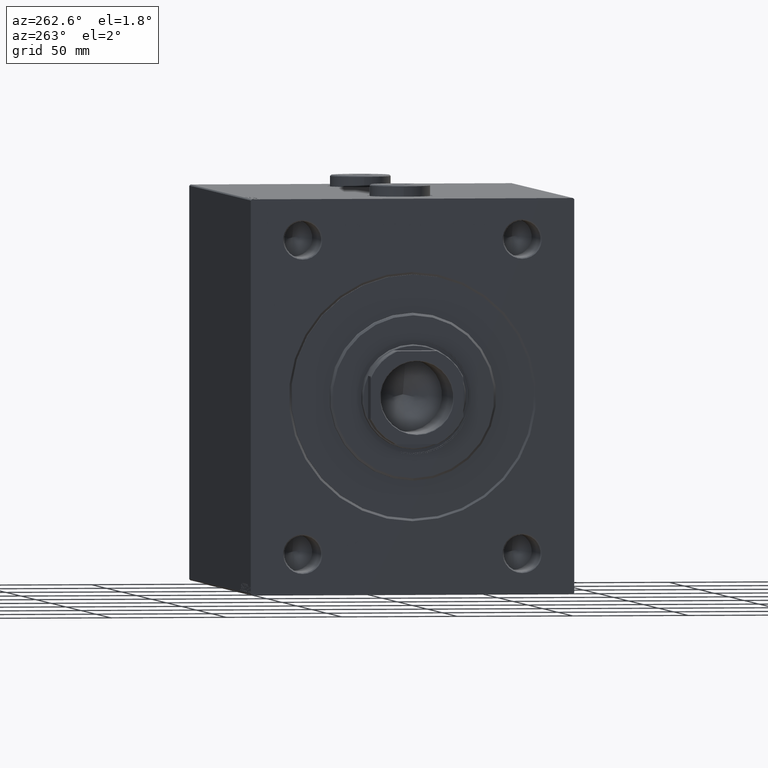
[diagram: clean part render]
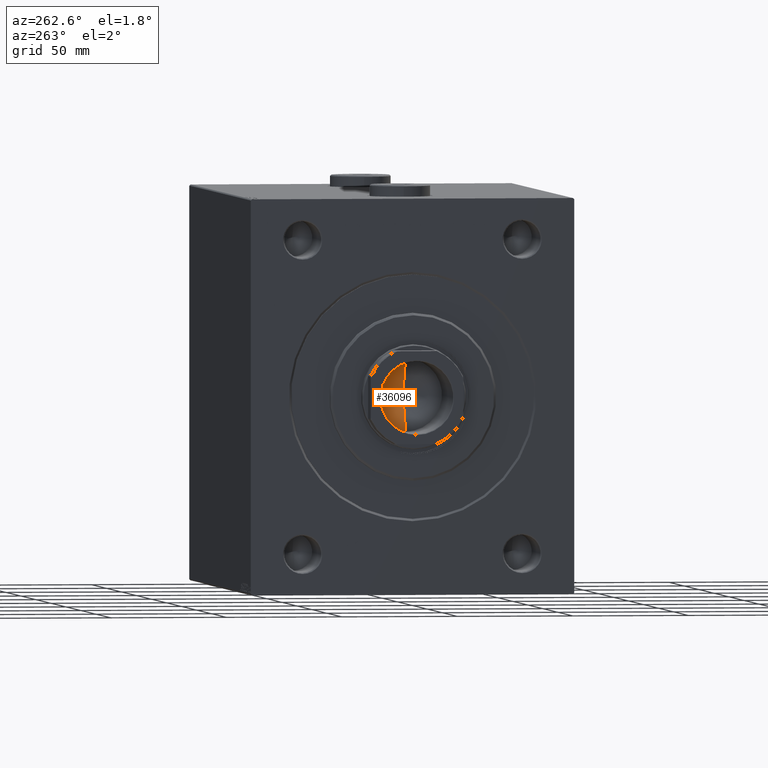
[diagram: same view with one face highlighted and labeled with its STEP entity id]
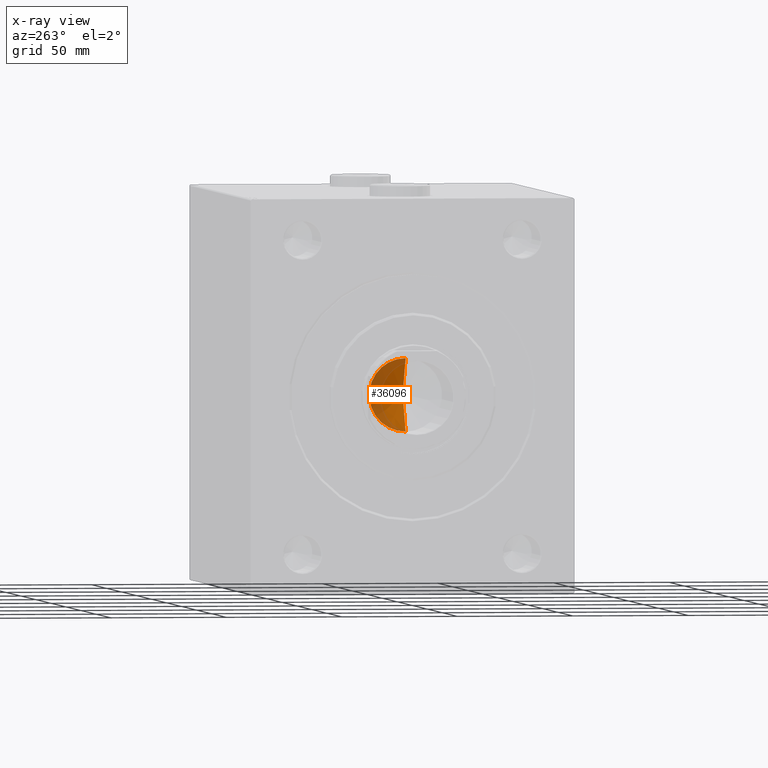
[diagram: x-ray of the same camera — body ghosted, the highlighted face saturated]
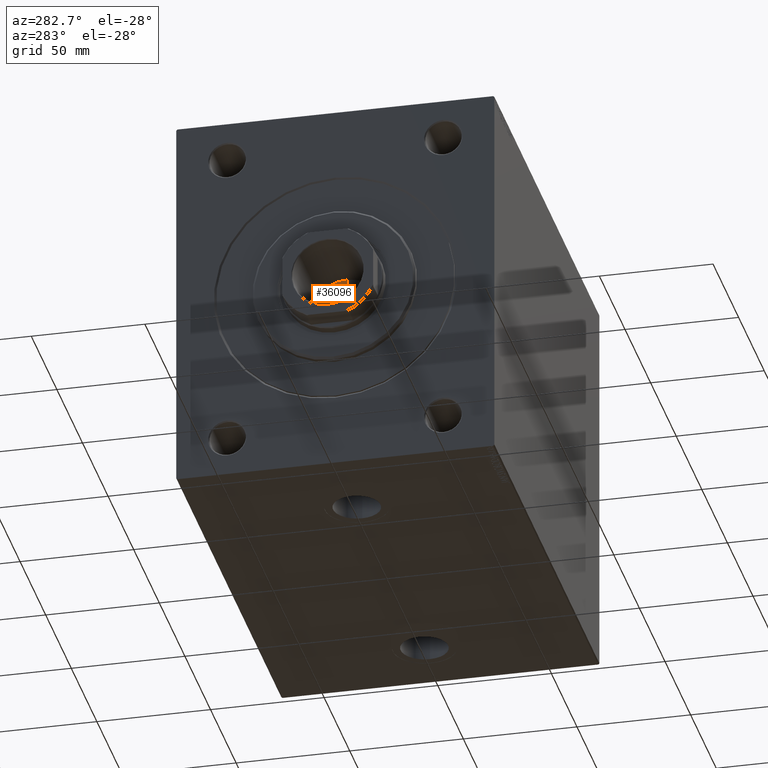
[diagram: same view with one face highlighted and labeled with its STEP entity id]
A machine part, auxiliary view. The second image highlights one B-rep face of the part: STEP entity #36096.
The next image is the same camera in x-ray: the body ghosted, the highlighted face saturated — about 41% of this face is hidden behind the body in this view.
A second angle (auxiliary view) of the same face is appended — the face is thin or edge-on in the first view.
In plain terms, the highlighted conical surface has half-angle 59 deg.
Its self-contained STEP definition (entity closure, byte-faithful):
#2190 = DIRECTION ( 'NONE',  ( 1.000000000000000000, 0.000000000000000000, 0.000000000000000000 ) ) ;
#2335 = VERTEX_POINT ( 'NONE', #41747 ) ;
#3860 = DIRECTION ( 'NONE',  ( 0.8571673007021120005, 0.000000000000000000, 0.5150380749100547106 ) ) ;
#4170 = EDGE_CURVE ( 'NONE', #20508, #19310, #14881, .T. ) ;
#5669 = AXIS2_PLACEMENT_3D ( 'NONE', #33859, #12133, #2190 ) ;
#6360 = VECTOR ( 'NONE', #9791, 1000.000000000000000 ) ;
#9791 = DIRECTION ( 'NONE',  ( -0.8571673007021120005, 1.049727191138618326E-16, 0.5150380749100547106 ) ) ;
#10119 = VECTOR ( 'NONE', #3860, 1000.000000000000000 ) ;
#11243 = LINE ( 'NONE', #18182, #10119 ) ;
#12133 = DIRECTION ( 'NONE',  ( -0.000000000000000000, -0.000000000000000000, 1.000000000000000000 ) ) ;
#12158 = EDGE_LOOP ( 'NONE', ( #32467, #26958, #42338 ) ) ;
#14881 = CIRCLE ( 'NONE', #16361, 15.74999999999999289 ) ;
#16361 = AXIS2_PLACEMENT_3D ( 'NONE', #25494, #18346, #25948 ) ;
#18182 = CARTESIAN_POINT ( 'NONE',  ( 15.74999999999999289, 0.000000000000000000, 156.0000000000000000 ) ) ;
#18346 = DIRECTION ( 'NONE',  ( -0.000000000000000000, -0.000000000000000000, 1.000000000000000000 ) ) ;
#19310 = VERTEX_POINT ( 'NONE', #36606 ) ;
#19739 = FACE_OUTER_BOUND ( 'NONE', #12158, .T. ) ;
#20508 = VERTEX_POINT ( 'NONE', #28837 ) ;
#25494 = CARTESIAN_POINT ( 'NONE',  ( 0.000000000000000000, 0.000000000000000000, 156.0000000000000000 ) ) ;
#25948 = DIRECTION ( 'NONE',  ( 1.000000000000000000, 0.000000000000000000, 0.000000000000000000 ) ) ;
#26958 = ORIENTED_EDGE ( 'NONE', *, *, #40617, .T. ) ;
#27343 = LINE ( 'NONE', #31509, #6360 ) ;
#28837 = CARTESIAN_POINT ( 'NONE',  ( 15.74999999999999289, 0.000000000000000000, 156.0000000000000000 ) ) ;
#31509 = CARTESIAN_POINT ( 'NONE',  ( -15.74999999999999289, 1.928818708657080556E-15, 156.0000000000000000 ) ) ;
#32467 = ORIENTED_EDGE ( 'NONE', *, *, #35260, .F. ) ;
#33859 = CARTESIAN_POINT ( 'NONE',  ( 0.000000000000000000, 0.000000000000000000, 156.0000000000000000 ) ) ;
#35260 = EDGE_CURVE ( 'NONE', #2335, #19310, #27343, .T. ) ;
#36096 = ADVANCED_FACE ( 'NONE', ( #19739 ), #44029, .F. ) ;
#36606 = CARTESIAN_POINT ( 'NONE',  ( -15.74999999999999289, 1.928818708657080556E-15, 156.0000000000000000 ) ) ;
#40617 = EDGE_CURVE ( 'NONE', #2335, #20508, #11243, .T. ) ;
#41747 = CARTESIAN_POINT ( 'NONE',  ( -1.199718644317817648E-14, 0.000000000000000000, 146.5364452503159214 ) ) ;
#42338 = ORIENTED_EDGE ( 'NONE', *, *, #4170, .T. ) ;
#44029 = CONICAL_SURFACE ( 'NONE', #5669, 15.74999999999999289, 1.029744258676653867 ) ;